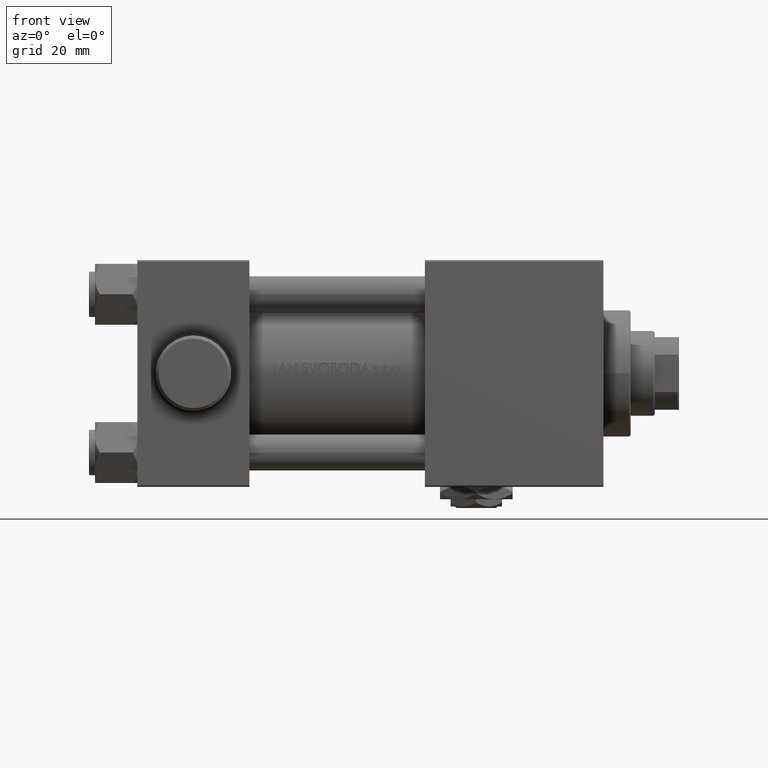
[diagram: clean part render]
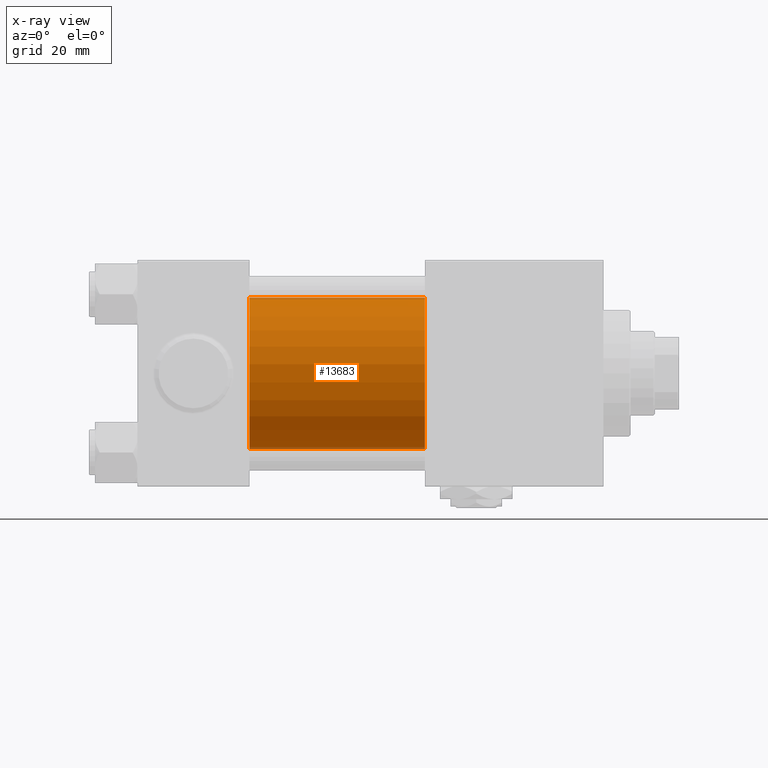
[diagram: x-ray — body ghosted, one internal face saturated and labeled with its STEP entity id]
A machine part, front view, then the same camera in x-ray: the body is ghosted and one INTERNAL B-rep face — a face not visible from any outside direction — is saturated and labeled: STEP entity #13683.
In plain terms, the highlighted cylindrical surface (partial cylindrical patch) has radius 25 mm, axis along (-1, -0, -0).
Its self-contained STEP definition (entity closure, byte-faithful):
#299 = CYLINDRICAL_SURFACE ( 'NONE', #14893, 25.00000000000000000 ) ;
#1243 = DIRECTION ( 'NONE',  ( 0.000000000000000000, 0.000000000000000000, -1.000000000000000000 ) ) ;
#2362 = ORIENTED_EDGE ( 'NONE', *, *, #13251, .T. ) ;
#2999 = DIRECTION ( 'NONE',  ( 0.000000000000000000, 0.000000000000000000, -1.000000000000000000 ) ) ;
#4653 = CARTESIAN_POINT ( 'NONE',  ( 95.00000000000000000, -4.078299540852317872E-16, -25.00000000000000000 ) ) ;
#6147 = CIRCLE ( 'NONE', #31231, 25.00000000000000000 ) ;
#7008 = CARTESIAN_POINT ( 'NONE',  ( 95.00000000000000000, -3.469446951953614189E-15, 0.000000000000000000 ) ) ;
#8494 = CIRCLE ( 'NONE', #35896, 25.00000000000000000 ) ;
#8818 = CARTESIAN_POINT ( 'NONE',  ( 95.00000000000000000, -4.078299540852317872E-16, -25.00000000000000000 ) ) ;
#9259 = EDGE_CURVE ( 'NONE', #47711, #34470, #8494, .T. ) ;
#9412 = EDGE_CURVE ( 'NONE', #23461, #41895, #6147, .T. ) ;
#12159 = CARTESIAN_POINT ( 'NONE',  ( 95.00000000000000000, -3.469446951953614189E-15, 25.00000000000000000 ) ) ;
#13251 = EDGE_CURVE ( 'NONE', #34470, #41895, #15447, .T. ) ;
#13683 = ADVANCED_FACE ( 'NONE', ( #28818 ), #299, .F. ) ;
#14893 = AXIS2_PLACEMENT_3D ( 'NONE', #7008, #28345, #25141 ) ;
#15447 = LINE ( 'NONE', #4653, #36802 ) ;
#15955 = CARTESIAN_POINT ( 'NONE',  ( 37.00000000000000000, -3.469446951953614189E-15, 0.000000000000000000 ) ) ;
#16791 = CARTESIAN_POINT ( 'NONE',  ( 95.00000000000000000, -3.469446951953614189E-15, 25.00000000000000000 ) ) ;
#19925 = EDGE_CURVE ( 'NONE', #47711, #23461, #38872, .T. ) ;
#20551 = ORIENTED_EDGE ( 'NONE', *, *, #19925, .F. ) ;
#23461 = VERTEX_POINT ( 'NONE', #37196 ) ;
#25141 = DIRECTION ( 'NONE',  ( 0.000000000000000000, 0.000000000000000000, 1.000000000000000000 ) ) ;
#26350 = ORIENTED_EDGE ( 'NONE', *, *, #9412, .F. ) ;
#26486 = DIRECTION ( 'NONE',  ( 1.000000000000000000, 0.000000000000000000, 0.000000000000000000 ) ) ;
#28345 = DIRECTION ( 'NONE',  ( -1.000000000000000000, -0.000000000000000000, -0.000000000000000000 ) ) ;
#28473 = CARTESIAN_POINT ( 'NONE',  ( 37.00000000000000000, -4.078299540852317872E-16, -25.00000000000000000 ) ) ;
#28818 = FACE_OUTER_BOUND ( 'NONE', #33496, .T. ) ;
#31231 = AXIS2_PLACEMENT_3D ( 'NONE', #15955, #34100, #1243 ) ;
#33373 = CARTESIAN_POINT ( 'NONE',  ( 95.00000000000000000, -3.469446951953614189E-15, 0.000000000000000000 ) ) ;
#33496 = EDGE_LOOP ( 'NONE', ( #40250, #2362, #26350, #20551 ) ) ;
#34100 = DIRECTION ( 'NONE',  ( 1.000000000000000000, 0.000000000000000000, 0.000000000000000000 ) ) ;
#34470 = VERTEX_POINT ( 'NONE', #8818 ) ;
#35896 = AXIS2_PLACEMENT_3D ( 'NONE', #33373, #26486, #2999 ) ;
#36802 = VECTOR ( 'NONE', #45378, 1000.000000000000000 ) ;
#37196 = CARTESIAN_POINT ( 'NONE',  ( 37.00000000000000000, -3.469446951953614189E-15, 25.00000000000000000 ) ) ;
#38872 = LINE ( 'NONE', #12159, #45529 ) ;
#40250 = ORIENTED_EDGE ( 'NONE', *, *, #9259, .T. ) ;
#41895 = VERTEX_POINT ( 'NONE', #28473 ) ;
#45378 = DIRECTION ( 'NONE',  ( -1.000000000000000000, -0.000000000000000000, -0.000000000000000000 ) ) ;
#45529 = VECTOR ( 'NONE', #45766, 1000.000000000000000 ) ;
#45766 = DIRECTION ( 'NONE',  ( -1.000000000000000000, -0.000000000000000000, -0.000000000000000000 ) ) ;
#47711 = VERTEX_POINT ( 'NONE', #16791 ) ;